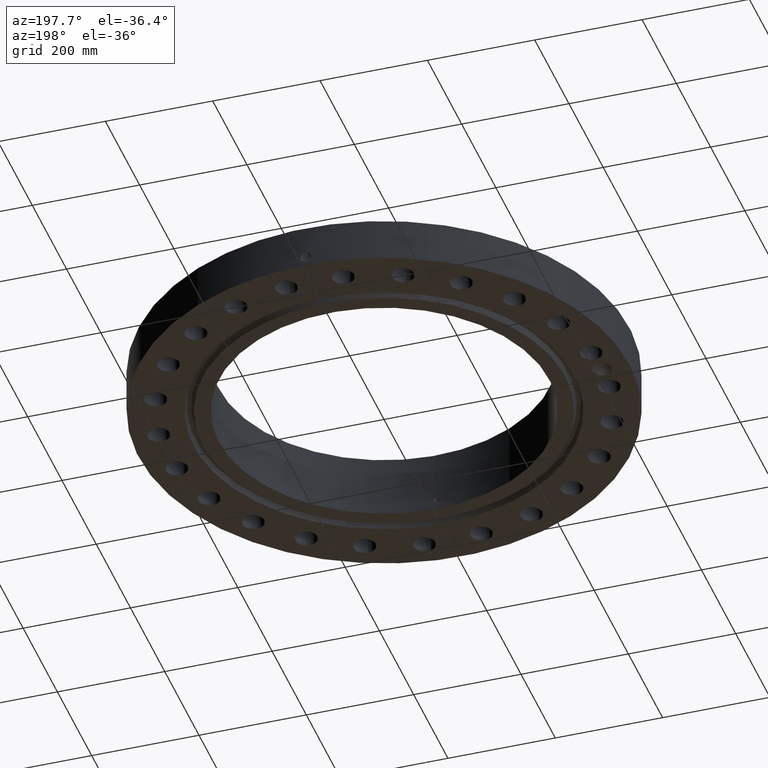
[diagram: clean part render]
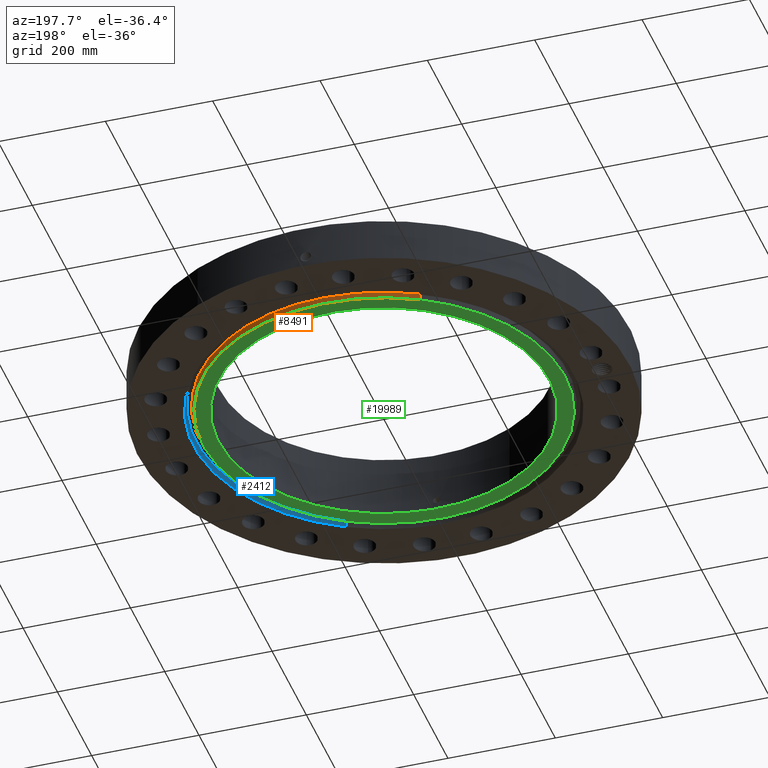
[diagram: same view with three faces highlighted in distinct colors, each labeled with its STEP entity id]
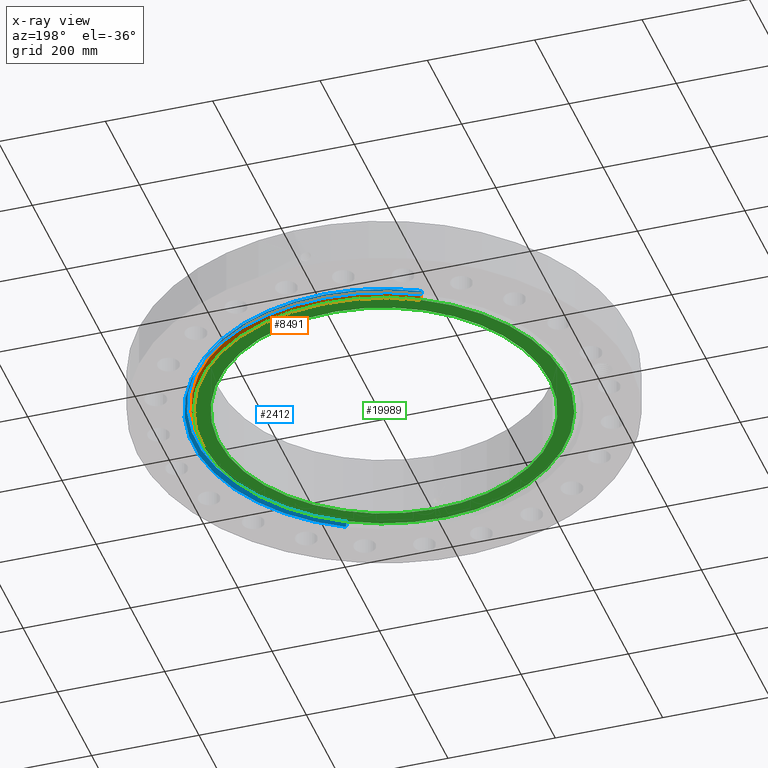
[diagram: x-ray of the same camera — body ghosted, the three highlighted faces saturated]
A machine part, auxiliary view with three faces highlighted in distinct colors.
The next image is the same camera in x-ray (body ghosted, the three faces saturated) — at least one of them is partly hidden behind the body in this view.
Their STEP definitions:

[orange] entity #8491 — the highlighted conical surface has half-angle 23 deg.
#5009=AXIS2_PLACEMENT_3D('Circle Axis2P3D',#5007,#5008,$) ;
#8452=AXIS2_PLACEMENT_3D('Cone Axis2P3D',#8449,#8450,#8451) ;
#8482=AXIS2_PLACEMENT_3D('Circle Axis2P3D',#8480,#8481,$) ;
#4985=CARTESIAN_POINT('Vertex',(-6.45624488067,11.8180769824,0.399616061096)) ;
#4992=CARTESIAN_POINT('Vertex',(6.45624488067,-11.8180769824,0.399616061096)) ;
#5007=CARTESIAN_POINT('Axis2P3D Location',(0.,0.,0.399616061096)) ;
#8449=CARTESIAN_POINT('Axis2P3D Location',(0.,0.,-0.0600000000002)) ;
#8454=CARTESIAN_POINT('Line Origine',(6.41558313376,-11.743646154,0.199808030548)) ;
#8458=CARTESIAN_POINT('Vertex',(6.37492138685,-11.6692153255,1.57354444435E-016)) ;
#8461=CARTESIAN_POINT('Line Origine',(-6.41558313376,11.743646154,0.199808030548)) ;
#8465=CARTESIAN_POINT('Vertex',(-6.37492138685,11.6692153255,7.86772222175E-017)) ;
#8480=CARTESIAN_POINT('Axis2P3D Location',(0.,0.,0.)) ;
#5008=DIRECTION('Axis2P3D Direction',(0.,0.,0.0393700787402)) ;
#8450=DIRECTION('Axis2P3D Direction',(0.,0.,0.0393700787402)) ;
#8451=DIRECTION('Axis2P3D XDirection',(0.0188750212049,-0.0345504945626,0.)) ;
#8455=DIRECTION('Vector Direction',(0.00737505833565,-0.0134999537303,0.0362403485611)) ;
#8462=DIRECTION('Vector Direction',(-0.00737505833565,0.0134999537303,0.0362403485611)) ;
#8481=DIRECTION('Axis2P3D Direction',(0.,0.,0.0393700787402)) ;
#8456=VECTOR('Line Direction',#8455,0.0393700787402) ;
#8463=VECTOR('Line Direction',#8462,0.0393700787402) ;
#8486=ORIENTED_EDGE('',*,*,#8467,.F.) ;
#8487=ORIENTED_EDGE('',*,*,#5011,.F.) ;
#8488=ORIENTED_EDGE('',*,*,#8460,.T.) ;
#8489=ORIENTED_EDGE('',*,*,#8484,.F.) ;
#8491=ADVANCED_FACE('PartBody',(#8490),#8453,.T.) ;
#5010=CIRCLE('generated circle',#5009,13.4666269541) ;
#8483=CIRCLE('generated circle',#8482,13.2970000001) ;
#8453=CONICAL_SURFACE('Cone',#8452,13.2715315111,0.401425727959) ;
#5011=EDGE_CURVE('',#4993,#4986,#5010,.T.) ;
#8460=EDGE_CURVE('',#4993,#8459,#8457,.F.) ;
#8467=EDGE_CURVE('',#4986,#8466,#8464,.F.) ;
#8484=EDGE_CURVE('',#8466,#8459,#8483,.F.) ;
#8485=EDGE_LOOP('',(#8486,#8487,#8488,#8489)) ;
#8490=FACE_OUTER_BOUND('',#8485,.T.) ;
#8457=LINE('Line',#8454,#8456) ;
#8464=LINE('Line',#8461,#8463) ;
#4986=VERTEX_POINT('',#4985) ;
#4993=VERTEX_POINT('',#4992) ;
#8459=VERTEX_POINT('',#8458) ;
#8466=VERTEX_POINT('',#8465) ;

[blue] entity #2412 — the highlighted conical surface has half-angle 23 deg.
#665=AXIS2_PLACEMENT_3D('Circle Axis2P3D',#663,#664,$) ;
#2373=AXIS2_PLACEMENT_3D('Cone Axis2P3D',#2370,#2371,#2372) ;
#2403=AXIS2_PLACEMENT_3D('Circle Axis2P3D',#2401,#2402,$) ;
#658=CARTESIAN_POINT('Vertex',(6.68942454017,-12.2449094861,0.)) ;
#660=CARTESIAN_POINT('Vertex',(-6.68942454017,12.2449094861,0.)) ;
#663=CARTESIAN_POINT('Axis2P3D Location',(1.1189649382E-015,4.47585975282E-015,0.)) ;
#2370=CARTESIAN_POINT('Axis2P3D Location',(0.,0.,0.399616061096)) ;
#2375=CARTESIAN_POINT('Line Origine',(-6.64876279326,12.1704786576,0.199808030548)) ;
#2379=CARTESIAN_POINT('Vertex',(-6.60810104635,12.0960478292,0.399616061096)) ;
#2386=CARTESIAN_POINT('Vertex',(6.60810104635,-12.0960478292,0.399616061096)) ;
#2389=CARTESIAN_POINT('Line Origine',(6.64876279326,-12.1704786576,0.199808030548)) ;
#2401=CARTESIAN_POINT('Axis2P3D Location',(0.,0.,0.399616061096)) ;
#664=DIRECTION('Axis2P3D Direction',(0.,0.,-0.0393700787402)) ;
#2371=DIRECTION('Axis2P3D Direction',(-0.,-0.,-0.0393700787402)) ;
#2372=DIRECTION('Axis2P3D XDirection',(-0.0188750212049,0.0345504945626,0.)) ;
#2376=DIRECTION('Vector Direction',(-0.00737505833565,0.0134999537303,-0.0362403485611)) ;
#2390=DIRECTION('Vector Direction',(0.00737505833565,-0.0134999537303,-0.0362403485611)) ;
#2402=DIRECTION('Axis2P3D Direction',(0.,0.,-0.0393700787402)) ;
#2377=VECTOR('Line Direction',#2376,0.0393700787402) ;
#2391=VECTOR('Line Direction',#2390,0.0393700787402) ;
#2407=ORIENTED_EDGE('',*,*,#667,.T.) ;
#2408=ORIENTED_EDGE('',*,*,#2393,.T.) ;
#2409=ORIENTED_EDGE('',*,*,#2405,.T.) ;
#2410=ORIENTED_EDGE('',*,*,#2381,.F.) ;
#2412=ADVANCED_FACE('PartBody',(#2411),#2374,.F.) ;
#666=CIRCLE('generated circle',#665,13.9530000001) ;
#2404=CIRCLE('generated circle',#2403,13.783373046) ;
#2374=CONICAL_SURFACE('Cone',#2373,13.783373046,0.401425727959) ;
#667=EDGE_CURVE('',#661,#659,#666,.T.) ;
#2381=EDGE_CURVE('',#661,#2380,#2378,.F.) ;
#2393=EDGE_CURVE('',#659,#2387,#2392,.F.) ;
#2405=EDGE_CURVE('',#2387,#2380,#2404,.F.) ;
#2406=EDGE_LOOP('',(#2407,#2408,#2409,#2410)) ;
#2411=FACE_OUTER_BOUND('',#2406,.T.) ;
#2378=LINE('Line',#2375,#2377) ;
#2392=LINE('Line',#2389,#2391) ;
#659=VERTEX_POINT('',#658) ;
#661=VERTEX_POINT('',#660) ;
#2380=VERTEX_POINT('',#2379) ;
#2387=VERTEX_POINT('',#2386) ;

[green] entity #19989 — the highlighted planar face has unit normal (0, 0, -1).
#165=AXIS2_PLACEMENT_3D('Plane Axis2P3D',#162,#163,#164) ;
#8470=AXIS2_PLACEMENT_3D('Circle Axis2P3D',#8468,#8469,$) ;
#8482=AXIS2_PLACEMENT_3D('Circle Axis2P3D',#8480,#8481,$) ;
#8813=AXIS2_PLACEMENT_3D('Circle Axis2P3D',#8811,#8812,$) ;
#8874=AXIS2_PLACEMENT_3D('Circle Axis2P3D',#8872,#8873,$) ;
#162=CARTESIAN_POINT('Axis2P3D Location',(0.,12.125,0.)) ;
#8458=CARTESIAN_POINT('Vertex',(6.37492138685,-11.6692153255,1.57354444435E-016)) ;
#8465=CARTESIAN_POINT('Vertex',(-6.37492138685,11.6692153255,7.86772222175E-017)) ;
#8468=CARTESIAN_POINT('Axis2P3D Location',(0.,0.,0.)) ;
#8480=CARTESIAN_POINT('Axis2P3D Location',(0.,0.,0.)) ;
#8808=CARTESIAN_POINT('Vertex',(5.8130346556,10.640688563,-9.23146074019E-015)) ;
#8811=CARTESIAN_POINT('Axis2P3D Location',(0.,7.99652833788E-018,-9.51120197474E-015)) ;
#8815=CARTESIAN_POINT('Vertex',(-5.8130346556,-10.640688563,-9.23146074019E-015)) ;
#8872=CARTESIAN_POINT('Axis2P3D Location',(0.,7.99652833788E-018,-9.51120197474E-015)) ;
#163=DIRECTION('Axis2P3D Direction',(0.,0.,-0.0393700787402)) ;
#164=DIRECTION('Axis2P3D XDirection',(0.0393700787402,0.,0.)) ;
#8469=DIRECTION('Axis2P3D Direction',(0.,0.,0.0393700787402)) ;
#8481=DIRECTION('Axis2P3D Direction',(0.,0.,0.0393700787402)) ;
#8812=DIRECTION('Axis2P3D Direction',(0.,0.,-0.0393700787402)) ;
#8873=DIRECTION('Axis2P3D Direction',(0.,0.,-0.0393700787402)) ;
#19982=ORIENTED_EDGE('',*,*,#8484,.T.) ;
#19983=ORIENTED_EDGE('',*,*,#8472,.T.) ;
#19986=ORIENTED_EDGE('',*,*,#8817,.F.) ;
#19987=ORIENTED_EDGE('',*,*,#8876,.F.) ;
#19988=FACE_BOUND('',#19985,.T.) ;
#19989=ADVANCED_FACE('PartBody',(#19984,#19988),#166,.T.) ;
#8471=CIRCLE('generated circle',#8470,13.2970000001) ;
#8483=CIRCLE('generated circle',#8482,13.2970000001) ;
#8814=CIRCLE('generated circle',#8813,12.125) ;
#8875=CIRCLE('generated circle',#8874,12.125) ;
#8472=EDGE_CURVE('',#8459,#8466,#8471,.F.) ;
#8484=EDGE_CURVE('',#8466,#8459,#8483,.F.) ;
#8817=EDGE_CURVE('',#8809,#8816,#8814,.T.) ;
#8876=EDGE_CURVE('',#8816,#8809,#8875,.T.) ;
#19981=EDGE_LOOP('',(#19982,#19983)) ;
#19985=EDGE_LOOP('',(#19986,#19987)) ;
#19984=FACE_OUTER_BOUND('',#19981,.T.) ;
#166=PLANE('',#165) ;
#8459=VERTEX_POINT('',#8458) ;
#8466=VERTEX_POINT('',#8465) ;
#8809=VERTEX_POINT('',#8808) ;
#8816=VERTEX_POINT('',#8815) ;